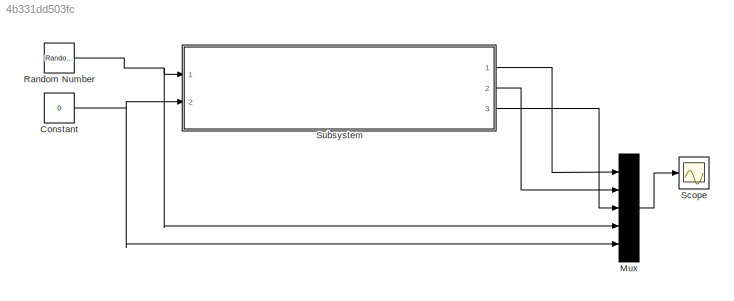
MODEL slx_4b331dd503fc
KIND model
CONFIG AbsTol = auto
CONFIG EnableMultiTasking = off
CONFIG FixedStep = auto
CONFIG MaxStep = auto
CONFIG MinStep = auto
CONFIG RelTol = 1e-3
CONFIG SampleTimeConstraint = Unconstrained
CONFIG Solver = VariableStepAuto
CONFIG SolverName = VariableStepAuto
CONFIG StartTime = 0.0
CONFIG StopTime = 10.0
BLOCK [Constant] Constant
  Value = 0
BLOCK [Mux] Mux
  DisplayOption = bar
  Inputs = 5
  Ports = [5, 1]
BLOCK [RandomNumber] Random Number
  Mean = 150
  SampleTime = 1
  Variance = 60
BLOCK [Scope] Scope
  Floating = off
  NumInputPorts = 1
  Ports = [1]
  ScopeSpecificationString = Simulink.scopes.TimeScopeBlockCfg('CurrentConfiguration', extmgr.ConfigurationSet(extmgr.Configuration('Core','General UI',true),extmgr.Configuration('Core','Source UI',true),extmgr.Configuration('Sources','WiredSimulink',true),extmgr.Configuration('Visuals','Time Domain',true,'SerializedDisplays',{struct('MinYLimReal','-101.73605','MaxYLimReal','480.29828','YLabelReal','','MinYLimMag',' 0.00000',...<+1630ch>
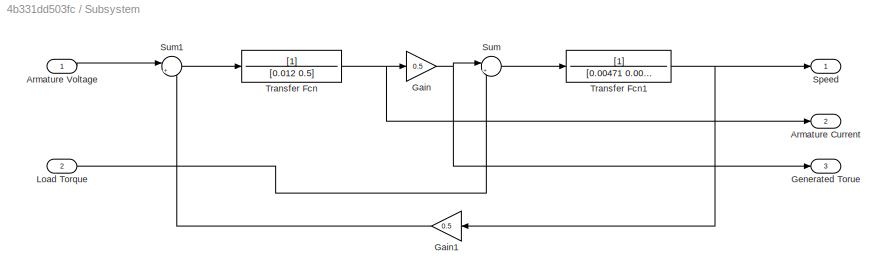
BLOCK [SubSystem] Subsystem
  Ports = [2, 3]
  RequestExecContextInheritance = off
BLOCK [Outport] Subsystem/Armature Current
  IconDisplay = Port number and signal name
  Port = 2
BLOCK [Inport] Subsystem/Armature Voltage 
  IconDisplay = Port number and signal name
BLOCK [Gain] Subsystem/Gain
  Gain = 0.5
  OutDataTypeStr = Inherit: Inherit via internal rule
  ParamDataTypeStr = Inherit: Inherit via internal rule
  SaturateOnIntegerOverflow = off
BLOCK [Gain] Subsystem/Gain1
  Gain = 0.5
  OutDataTypeStr = Inherit: Inherit via internal rule
  ParamDataTypeStr = Inherit: Inherit via internal rule
  SaturateOnIntegerOverflow = off
BLOCK [Outport] Subsystem/Generated Torue 
  IconDisplay = Port number and signal name
  Port = 3
BLOCK [Inport] Subsystem/Load Torque 
  IconDisplay = Port number and signal name
  Port = 2
BLOCK [Outport] Subsystem/Speed 
  IconDisplay = Port number and signal name
BLOCK [Sum] Subsystem/Sum
  IconShape = round
  InputSameDT = off
  Inputs = |+-
  OutDataTypeStr = Inherit: Inherit via internal rule
  Ports = [2, 1]
  SaturateOnIntegerOverflow = off
BLOCK [Sum] Subsystem/Sum1
  IconShape = round
  InputSameDT = off
  Inputs = |+-
  OutDataTypeStr = Inherit: Inherit via internal rule
  Ports = [2, 1]
  SaturateOnIntegerOverflow = off
BLOCK [TransferFcn] Subsystem/Transfer Fcn
  Denominator = [0.012 0.5]
BLOCK [TransferFcn] Subsystem/Transfer Fcn1
  Denominator = [0.00471 0.002]
NET Constant:1 -> Mux:5, Subsystem:2
LINE Mux:1 -> Scope:1
NET Random Number:1 -> Mux:4, Subsystem:1
LINE Subsystem/Armature Voltage :1 -> Subsystem/Sum1:1
LINE Subsystem/Gain1:1 -> Subsystem/Sum1:2
NET Subsystem/Gain:1 -> Subsystem/Generated Torue :1, Subsystem/Sum:1
LINE Subsystem/Load Torque :1 -> Subsystem/Sum:2
LINE Subsystem/Sum1:1 -> Subsystem/Transfer Fcn:1
LINE Subsystem/Sum:1 -> Subsystem/Transfer Fcn1:1
NET Subsystem/Transfer Fcn1:1 -> Subsystem/Gain1:1, Subsystem/Speed :1
NET Subsystem/Transfer Fcn:1 -> Subsystem/Armature Current:1, Subsystem/Gain:1
LINE Subsystem:1 -> Mux:1
LINE Subsystem:2 -> Mux:2
LINE Subsystem:3 -> Mux:3
note: NET lines group one-source signal fan-out (src -> all destinations, sorted); 1:1 wires keep LINE
